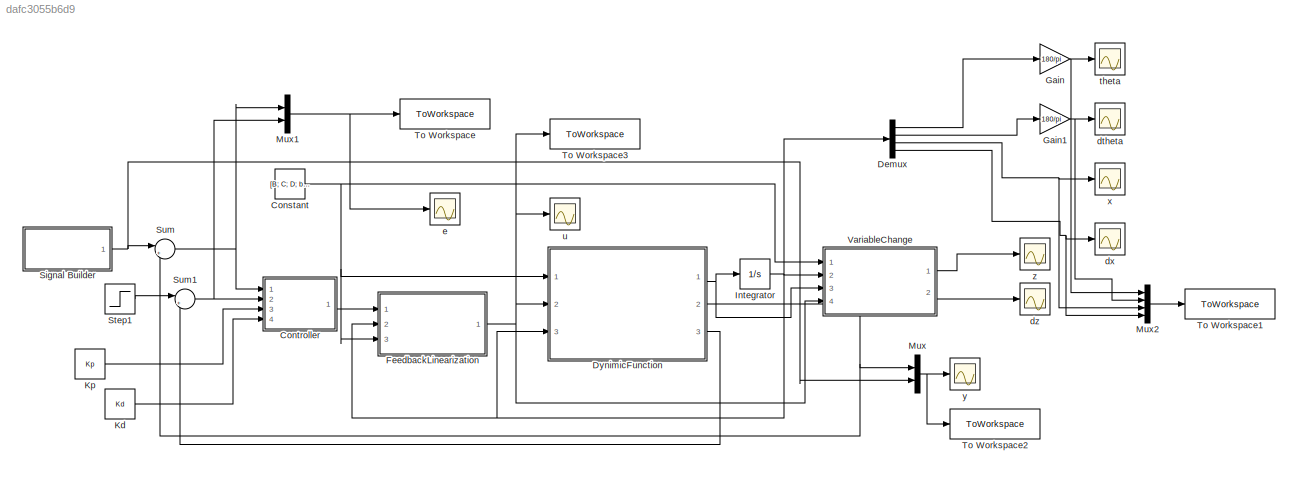
MODEL slx_dafc3055b6d9
KIND model
CONFIG AbsTol = auto
CONFIG EnableMultiTasking = off
CONFIG FixedStep = auto
CONFIG MaxStep = auto
CONFIG MinStep = auto
CONFIG RelTol = 1e-3
CONFIG SampleTimeConstraint = Unconstrained
CONFIG Solver = ode23t
CONFIG SolverName = ode23t
CONFIG StartTime = 0.0
CONFIG StopTime = 25
BLOCK [Constant] Constant
  Value = [B; C; D; b1; b2; l; gravity]
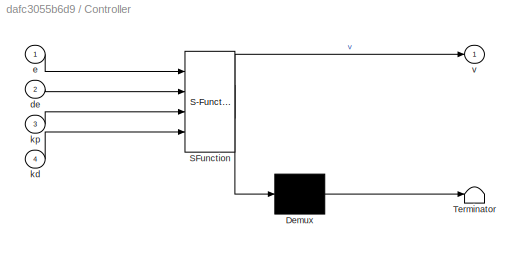
BLOCK [SubSystem] Controller
  ErrorFcn = Stateflow.Translate.translate
  PermitHierarchicalResolution = ExplicitOnly
  Ports = [4, 1]
  RequestExecContextInheritance = off
  SFBlockType = MATLAB Function
  TreatAsAtomicUnit = on
BLOCK [Demux] Controller/ Demux 
  Outputs = 1
  Ports = [1, 1]
BLOCK [S-Function] Controller/ SFunction 
  EnableBusSupport = on
  FunctionName = sf_sfun
  PortCounts = [4 2]
  Ports = [4, 2]
  SFcnIsStateOwnerBlock = off
  SFunctionDeploymentMode = off
  Tag = Stateflow S-Function 4
BLOCK [Terminator] Controller/ Terminator 
BLOCK [Inport] Controller/de
  IconDisplay = Port number
  Port = 2
BLOCK [Inport] Controller/e
  IconDisplay = Port number
BLOCK [Inport] Controller/kd
  IconDisplay = Port number
  Port = 4
BLOCK [Inport] Controller/kp
  IconDisplay = Port number
  Port = 3
BLOCK [Outport] Controller/v
  IconDisplay = Port number
BLOCK [Demux] Demux
  DisplayOption = bar
  Ports = [1, 4]
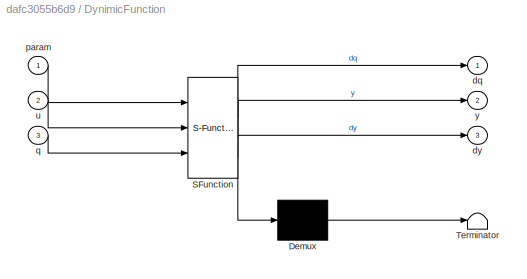
BLOCK [SubSystem] DynimicFunction
  ErrorFcn = Stateflow.Translate.translate
  PermitHierarchicalResolution = ExplicitOnly
  Ports = [3, 3]
  RequestExecContextInheritance = off
  SFBlockType = MATLAB Function
  TreatAsAtomicUnit = on
BLOCK [Demux] DynimicFunction/ Demux 
  Outputs = 1
  Ports = [1, 1]
BLOCK [S-Function] DynimicFunction/ SFunction 
  EnableBusSupport = on
  FunctionName = sf_sfun
  PortCounts = [3 4]
  Ports = [3, 4]
  SFcnIsStateOwnerBlock = off
  SFunctionDeploymentMode = off
  Tag = Stateflow S-Function 2
BLOCK [Terminator] DynimicFunction/ Terminator 
BLOCK [Outport] DynimicFunction/dq
  IconDisplay = Port number
BLOCK [Outport] DynimicFunction/dy
  IconDisplay = Port number
  Port = 3
BLOCK [Inport] DynimicFunction/param
  IconDisplay = Port number
BLOCK [Inport] DynimicFunction/q
  IconDisplay = Port number
  Port = 3
BLOCK [Inport] DynimicFunction/u
  IconDisplay = Port number
  Port = 2
BLOCK [Outport] DynimicFunction/y
  IconDisplay = Port number
  Port = 2
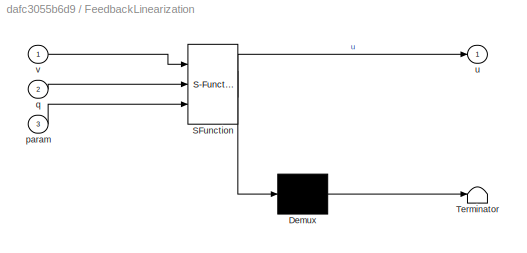
BLOCK [SubSystem] FeedbackLinearization
  ErrorFcn = Stateflow.Translate.translate
  PermitHierarchicalResolution = ExplicitOnly
  Ports = [3, 1]
  RequestExecContextInheritance = off
  SFBlockType = MATLAB Function
  TreatAsAtomicUnit = on
BLOCK [Demux] FeedbackLinearization/ Demux 
  Outputs = 1
  Ports = [1, 1]
BLOCK [S-Function] FeedbackLinearization/ SFunction 
  EnableBusSupport = on
  FunctionName = sf_sfun
  PortCounts = [3 2]
  Ports = [3, 2]
  SFcnIsStateOwnerBlock = off
  SFunctionDeploymentMode = off
  Tag = Stateflow S-Function 1
BLOCK [Terminator] FeedbackLinearization/ Terminator 
BLOCK [Inport] FeedbackLinearization/param
  IconDisplay = Port number
  Port = 3
BLOCK [Inport] FeedbackLinearization/q
  IconDisplay = Port number
  Port = 2
BLOCK [Outport] FeedbackLinearization/u
  IconDisplay = Port number
BLOCK [Inport] FeedbackLinearization/v
  IconDisplay = Port number
BLOCK [Gain] Gain
  Gain = 180/pi
  OutDataTypeStr = Inherit: Inherit via internal rule
  ParamDataTypeStr = Inherit: Inherit via internal rule
  SaturateOnIntegerOverflow = off
BLOCK [Gain] Gain1
  Gain = 180/pi
  OutDataTypeStr = Inherit: Inherit via internal rule
  ParamDataTypeStr = Inherit: Inherit via internal rule
  SaturateOnIntegerOverflow = off
BLOCK [Integrator] Integrator
  InitialCondition = q0
  Ports = [1, 1]
BLOCK [Constant] Kd
  Value = Kd
BLOCK [Constant] Kp
  Value = Kp
BLOCK [Mux] Mux
  DisplayOption = bar
  Inputs = 2
  Ports = [2, 1]
BLOCK [Mux] Mux1
  DisplayOption = bar
  Inputs = 2
  Ports = [2, 1]
BLOCK [Mux] Mux2
  DisplayOption = bar
  Ports = [4, 1]
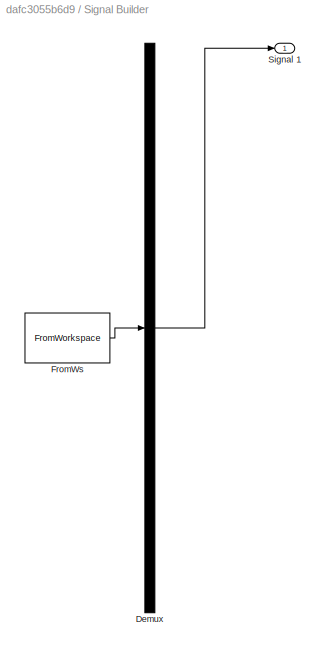
BLOCK [SubSystem] Signal Builder
  ClipboardFcn = sigbuilder_block('clipboard');
  CloseFcn = sigbuilder_block('close');
  ContinueFcn = sigbuilder_block('continue');
  CopyFcn = sigbuilder_block('copy');
  DeleteFcn = sigbuilder_block('delete');
  LoadFcn = sigbuilder_block('load');
  MaskHideContents = on
  ModelCloseFcn = sigbuilder_block('modelClose');
  NameChangeFcn = sigbuilder_block('namechange');
  OpenFcn = sigbuilder_block('open',[437.6 199.2 550.4 400 ]);
  PauseFcn = sigbuilder_block('pause');
  Ports = [0, 1]
  PreSaveFcn = sigbuilder_block('preSave');
  RequestExecContextInheritance = off
  StartFcn = sigbuilder_block('start');
  StopFcn = sigbuilder_block('stop');
  Tag = STV Subsys
BLOCK [Demux] Signal Builder/Demux
  Outputs = 1
  Ports = [1, 1]
  Tag = STV Demux
BLOCK [FromWorkspace] Signal Builder/FromWs
  SampleTime = 0
  Tag = STV FromWs
  VariableName = tuvar
  ZeroCross = on
BLOCK [Outport] Signal Builder/Signal 1
  IconDisplay = Port number
  Tag = STV Outport
BLOCK [Step] Step1
  After = 0
  SampleTime = 0
BLOCK [Sum] Sum
  IconShape = round
  InputSameDT = off
  Inputs = |+-
  OutDataTypeStr = Inherit: Inherit via internal rule
  Ports = [2, 1]
  SaturateOnIntegerOverflow = off
BLOCK [Sum] Sum1
  IconShape = round
  InputSameDT = off
  Inputs = |+-
  OutDataTypeStr = Inherit: Inherit via internal rule
  Ports = [2, 1]
  SaturateOnIntegerOverflow = off
BLOCK [ToWorkspace] To Workspace
  FixptAsFi = on
  MaxDataPoints = inf
  Ports = [1]
  SampleTime = -1
  SaveFormat = Timeseries
  VariableName = simout
BLOCK [ToWorkspace] To Workspace1
  FixptAsFi = on
  MaxDataPoints = inf
  Ports = [1]
  SampleTime = -1
  SaveFormat = Timeseries
  VariableName = simout1
BLOCK [ToWorkspace] To Workspace2
  FixptAsFi = on
  MaxDataPoints = inf
  Ports = [1]
  SampleTime = -1
  SaveFormat = Timeseries
  VariableName = simout2
BLOCK [ToWorkspace] To Workspace3
  FixptAsFi = on
  MaxDataPoints = inf
  Ports = [1]
  SampleTime = -1
  SaveFormat = Timeseries
  VariableName = simout3
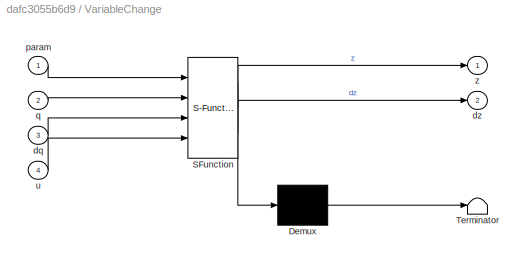
BLOCK [SubSystem] VariableChange
  ErrorFcn = Stateflow.Translate.translate
  PermitHierarchicalResolution = ExplicitOnly
  Ports = [4, 2]
  RequestExecContextInheritance = off
  SFBlockType = MATLAB Function
  TreatAsAtomicUnit = on
BLOCK [Demux] VariableChange/ Demux 
  Outputs = 1
  Ports = [1, 1]
BLOCK [S-Function] VariableChange/ SFunction 
  EnableBusSupport = on
  FunctionName = sf_sfun
  PortCounts = [4 3]
  Ports = [4, 3]
  SFcnIsStateOwnerBlock = off
  SFunctionDeploymentMode = off
  Tag = Stateflow S-Function 3
BLOCK [Terminator] VariableChange/ Terminator 
BLOCK [Inport] VariableChange/dq
  IconDisplay = Port number
  Port = 3
BLOCK [Outport] VariableChange/dz
  IconDisplay = Port number
  Port = 2
BLOCK [Inport] VariableChange/param
  IconDisplay = Port number
BLOCK [Inport] VariableChange/q
  IconDisplay = Port number
  Port = 2
BLOCK [Inport] VariableChange/u
  IconDisplay = Port number
  Port = 4
BLOCK [Outport] VariableChange/z
  IconDisplay = Port number
BLOCK [Scope] dtheta
  Floating = off
  NumInputPorts = 1
  Ports = [1]
  ScopeSpecificationString = Simulink.scopes.TimeScopeBlockCfg('CurrentConfiguration', extmgr.ConfigurationSet(extmgr.Configuration('Core','General UI',true),extmgr.Configuration('Core','Source UI',true),extmgr.Configuration('Sources','WiredSimulink',true,'DataLoggingVariableName','ScopeData2'),extmgr.Configuration('Visuals','Time Domain',true,'SerializedDisplays',{struct('MinYLimReal','-14.58142','MaxYLimReal','7.98636','YLa...<+1368ch>
BLOCK [Scope] dx
  Floating = off
  NumInputPorts = 1
  Ports = [1]
  ScopeSpecificationString = Simulink.scopes.TimeScopeBlockCfg('CurrentConfiguration', extmgr.ConfigurationSet(extmgr.Configuration('Core','General UI',true),extmgr.Configuration('Core','Source UI',true),extmgr.Configuration('Sources','WiredSimulink',true,'DataLoggingVariableName','ScopeData4'),extmgr.Configuration('Visuals','Time Domain',true,'SerializedDisplays',{struct('MinYLimReal','-0.36274','MaxYLimReal','2.43284','YLab...<+1366ch>
BLOCK [Scope] dz
  Floating = off
  NumInputPorts = 1
  Ports = [1]
  ScopeSpecificationString = Simulink.scopes.TimeScopeBlockCfg('CurrentConfiguration', extmgr.ConfigurationSet(extmgr.Configuration('Core','General UI',true),extmgr.Configuration('Core','Source UI',true),extmgr.Configuration('Sources','WiredSimulink',true,'DataLoggingVariableName','ScopeData1'),extmgr.Configuration('Visuals','Time Domain',true),extmgr.Configuration('Tools','Plot Navigation',true),extmgr.Configuration('Tools',...<+58ch>
BLOCK [Scope] e
  Floating = off
  NumInputPorts = 1
  Ports = [1]
  ScopeSpecificationString = Simulink.scopes.TimeScopeBlockCfg('CurrentConfiguration', extmgr.ConfigurationSet(extmgr.Configuration('Core','General UI',true),extmgr.Configuration('Core','Source UI',true),extmgr.Configuration('Sources','WiredSimulink',true,'DataLoggingVariableName','ScopeData5'),extmgr.Configuration('Visuals','Time Domain',true,'SerializedDisplays',{struct('MinYLimReal','-0.46667','MaxYLimReal','2.92864','YLab...<+1432ch>
BLOCK [Scope] theta
  Floating = off
  NumInputPorts = 1
  Ports = [1]
  ScopeSpecificationString = Simulink.scopes.TimeScopeBlockCfg('CurrentConfiguration', extmgr.ConfigurationSet(extmgr.Configuration('Core','General UI',true),extmgr.Configuration('Core','Source UI',true),extmgr.Configuration('Sources','WiredSimulink',true,'DataLoggingVariableName','ScopeData1'),extmgr.Configuration('Visuals','Time Domain',true,'SerializedDisplays',{struct('MinYLimReal','-7.71781','MaxYLimReal','7.2239','YLabe...<+1361ch>
BLOCK [Scope] u
  Floating = off
  NumInputPorts = 1
  Ports = [1]
  ScopeSpecificationString = Simulink.scopes.TimeScopeBlockCfg('CurrentConfiguration', extmgr.ConfigurationSet(extmgr.Configuration('Core','General UI',true),extmgr.Configuration('Core','Source UI',true),extmgr.Configuration('Sources','WiredSimulink',true,'DataLoggingVariableName','ScopeData1'),extmgr.Configuration('Visuals','Time Domain',true,'SerializedDisplays',{struct('MinYLimReal','-0.00053','MaxYLimReal','0.00463','YLab...<+1453ch>
BLOCK [Scope] x
  Floating = off
  NumInputPorts = 1
  Ports = [1]
  ScopeSpecificationString = Simulink.scopes.TimeScopeBlockCfg('CurrentConfiguration', extmgr.ConfigurationSet(extmgr.Configuration('Core','General UI',true),extmgr.Configuration('Core','Source UI',true),extmgr.Configuration('Sources','WiredSimulink',true,'DataLoggingVariableName','ScopeData3'),extmgr.Configuration('Visuals','Time Domain',true,'SerializedDisplays',{struct('MinYLimReal','-0.27262','MaxYLimReal','3.36366','YLab...<+1366ch>
BLOCK [Scope] y
  Floating = off
  NumInputPorts = 1
  Ports = [1]
  ScopeSpecificationString = Simulink.scopes.TimeScopeBlockCfg('CurrentConfiguration', extmgr.ConfigurationSet(extmgr.Configuration('Core','General UI',true),extmgr.Configuration('Core','Source UI',true),extmgr.Configuration('Sources','WiredSimulink',true,'DataLoggingVariableName','ScopeData1'),extmgr.Configuration('Visuals','Time Domain',true,'SerializedDisplays',{struct('MinYLimReal','2.97801','MaxYLimReal','3.02399','YLabe...<+1464ch>
BLOCK [Scope] z
  Floating = off
  NumInputPorts = 1
  Ports = [1]
  ScopeSpecificationString = Simulink.scopes.TimeScopeBlockCfg('CurrentConfiguration', extmgr.ConfigurationSet(extmgr.Configuration('Core','General UI',true),extmgr.Configuration('Core','Source UI',true),extmgr.Configuration('Sources','WiredSimulink',true,'DataLoggingVariableName','ScopeData2'),extmgr.Configuration('Visuals','Time Domain',true,'SerializedDisplays',{struct('MinYLimReal','-12.5259','MaxYLimReal','24.21687','YLa...<+1498ch>
NET Constant:1 -> DynimicFunction:1, FeedbackLinearization:3, VariableChange:1
LINE Controller:1 -> FeedbackLinearization:1
LINE Demux:1 -> Gain:1
LINE Demux:2 -> Gain1:1
NET Demux:3 -> Mux2:3, x:1
NET Demux:4 -> Mux2:4, dx:1
NET DynimicFunction:1 -> Integrator:1, VariableChange:3
NET DynimicFunction:2 -> Mux:1, Sum:2
LINE DynimicFunction:3 -> Sum1:2
NET FeedbackLinearization:1 -> DynimicFunction:2, To Workspace3:1, VariableChange:4, u:1
NET Gain1:1 -> Mux2:2, dtheta:1
NET Gain:1 -> Mux2:1, theta:1
NET Integrator:1 -> Demux:1, DynimicFunction:3, FeedbackLinearization:2, VariableChange:2
LINE Kd:1 -> Controller:4
LINE Kp:1 -> Controller:3
NET Mux1:1 -> To Workspace:1, e:1
LINE Mux2:1 -> To Workspace1:1
NET Mux:1 -> To Workspace2:1, y:1
NET Signal Builder:1 -> Mux:2, Sum:1
LINE Step1:1 -> Sum1:1
NET Sum1:1 -> Controller:2, Mux1:2
NET Sum:1 -> Controller:1, Mux1:1
LINE VariableChange:1 -> z:1
LINE VariableChange:2 -> dz:1
note: NET lines group one-source signal fan-out (src -> all destinations, sorted); 1:1 wires keep LINE
CHART FeedbackLinearization states=1 transitions=1
  STATE_LABEL 'eML_blk_kernel()'
  STATE_LABEL 'SCRIPT:\nfunction u = FeedbackLinearization(v, q, param)\n\nB = param(1);\nC = param(2);\nD = param(3);\nb1 = param(4);\nb2 = param(5);\nl = param(6);\ngravity = param(7);\n\nu = (v - Lf2h_fun(B,C,D,b1,b2,gravity,l,q)) / LgLfh_fun(B,C,D,l,q);\n\nend'
CHART DynimicFunction states=1 transitions=1
  STATE_LABEL 'eML_blk_kernel()'
  STATE_LABEL 'SCRIPT:\nfunction [dq, y, dy] = DynamicFunction(param, u, q)\n\nB = param(1);\nC = param(2);\nD = param(3);\nb1 = param(4);\nb2 = param(5);\nl = param(6);\ngravity = param(7);\n\ndq = f_fun(B,C,D,b1,b2,gravity,l,q) + g_fun(B,C,D,l,q)*u;\ny = h_fun(l,q);\ndy = dq(3) + l*cos(q(1))*dq(1);\n\nend'
CHART VariableChange states=1 transitions=1
  STATE_LABEL 'eML_blk_kernel()'
  STATE_LABEL 'SCRIPT:\nfunction [z, dz] = VariableChange(param, q, dq, u)\n\nz = zeros(4,1);\ndz = zeros(4,1);\n\nB = param(1);\nC = param(2);\nD = param(3);\nb1 = param(4);\nb2 = param(5);\nl = param(6);\ngravity = param(7);\n\nz(1) = h_fun(l,q);\nz(2) = Lfh_fun(l,q);\nz(3) = q(1);\nz(4) = (-1/(l*cos(q(1))*B))*q(2) + q(4);\n\ndz(1) = z(2);\ndz(2) = Lf2h_fun(B,C,D,b1,b2,gravity,l,q) + LgLfh_fun(B,C,D,l,q)*u;\ndz(3) = dq(1);\ndz(4) =...<+308ch>'
CHART Controller states=1 transitions=1
  STATE_LABEL 'eML_blk_kernel()'
  STATE_LABEL 'SCRIPT:\nfunction v = Controller(e,de,kp,kd)\n\nv = kp * e + kd * de;\n\nend\n'
